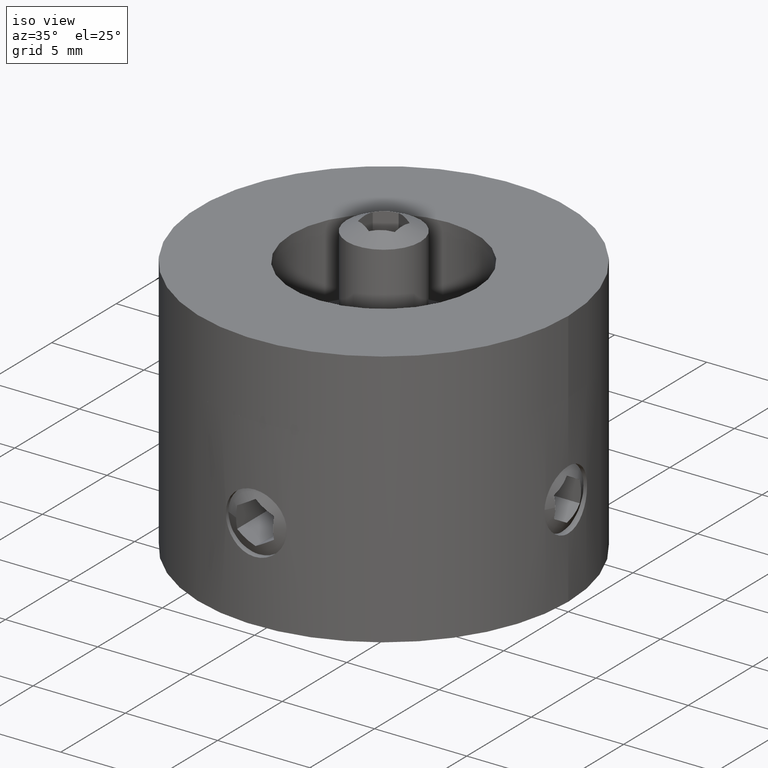
[diagram: clean part render]
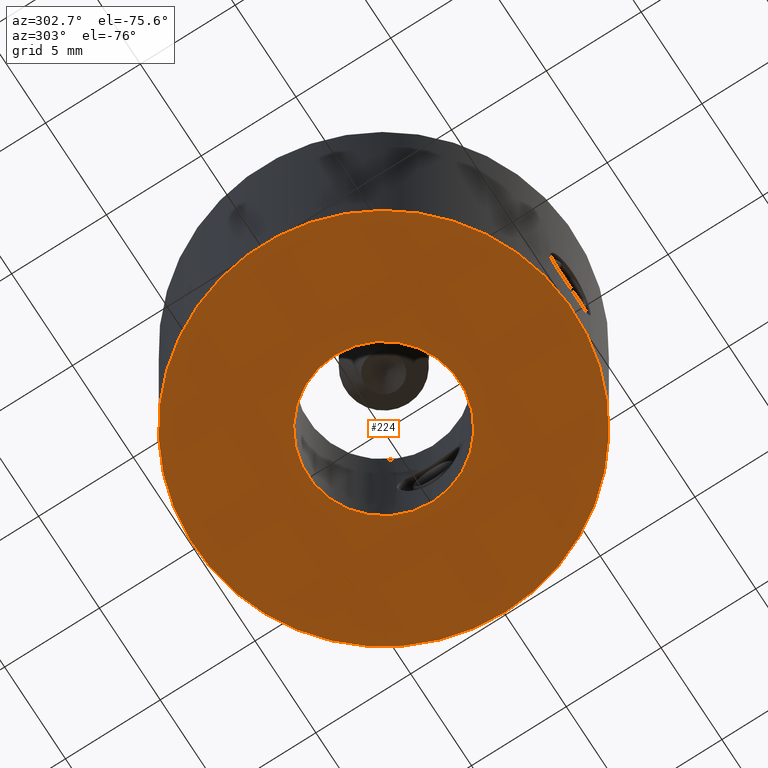
[diagram: tour spotlight — one face highlighted and labeled with its STEP entity id]
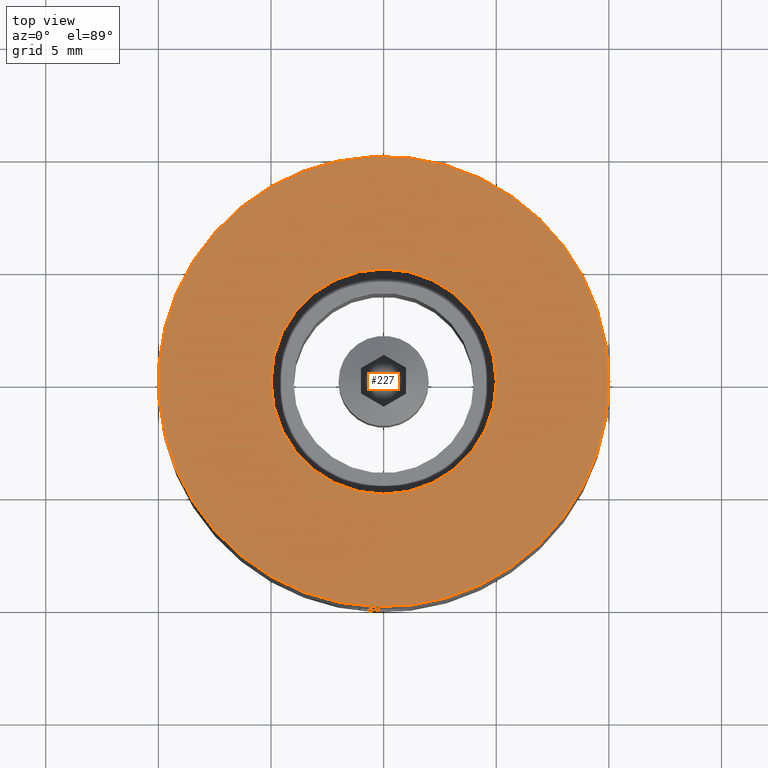
[diagram: tour spotlight — one face highlighted and labeled with its STEP entity id]
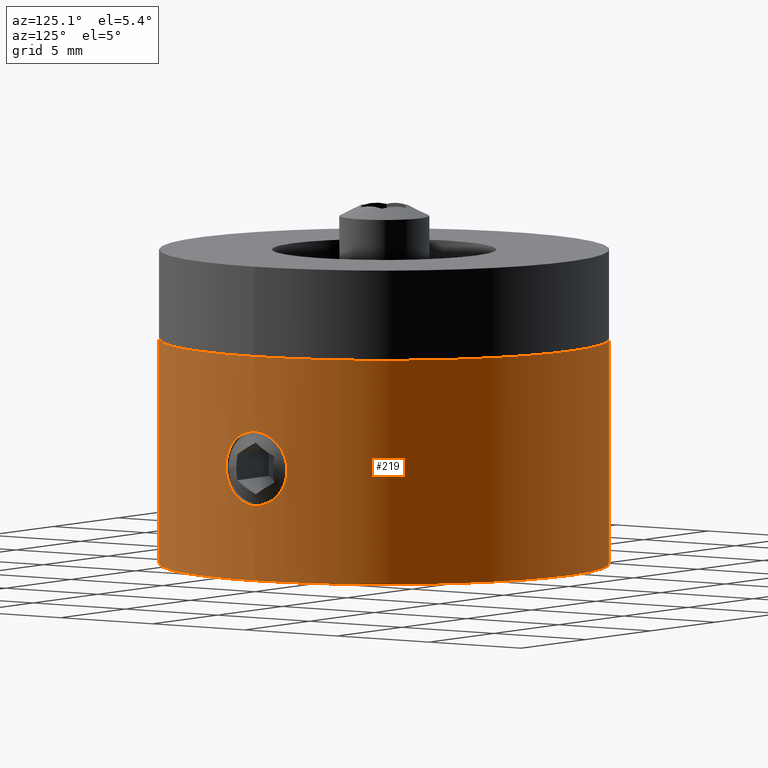
[diagram: tour spotlight — one face highlighted and labeled with its STEP entity id]
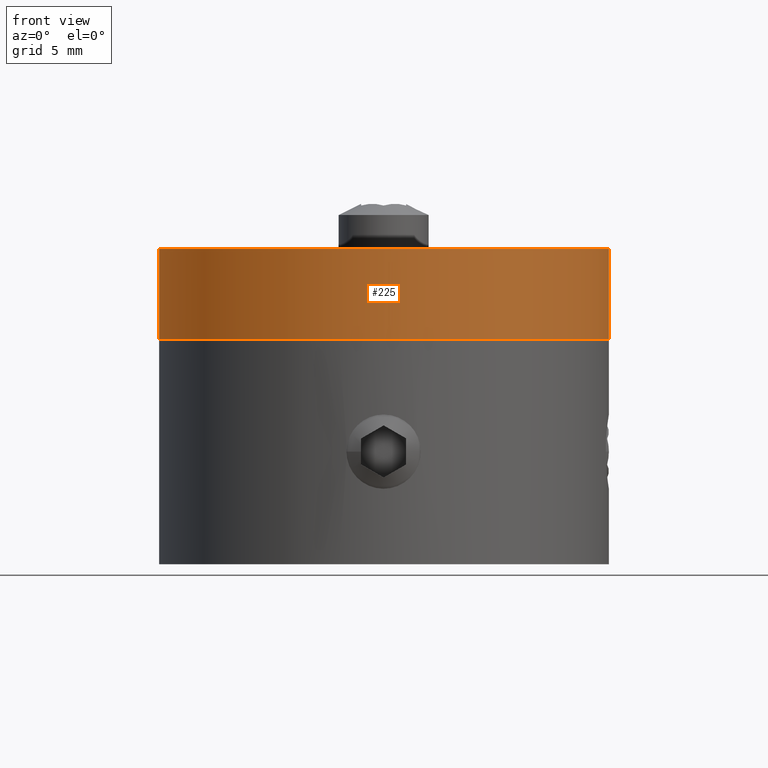
[diagram: tour spotlight — one face highlighted and labeled with its STEP entity id]
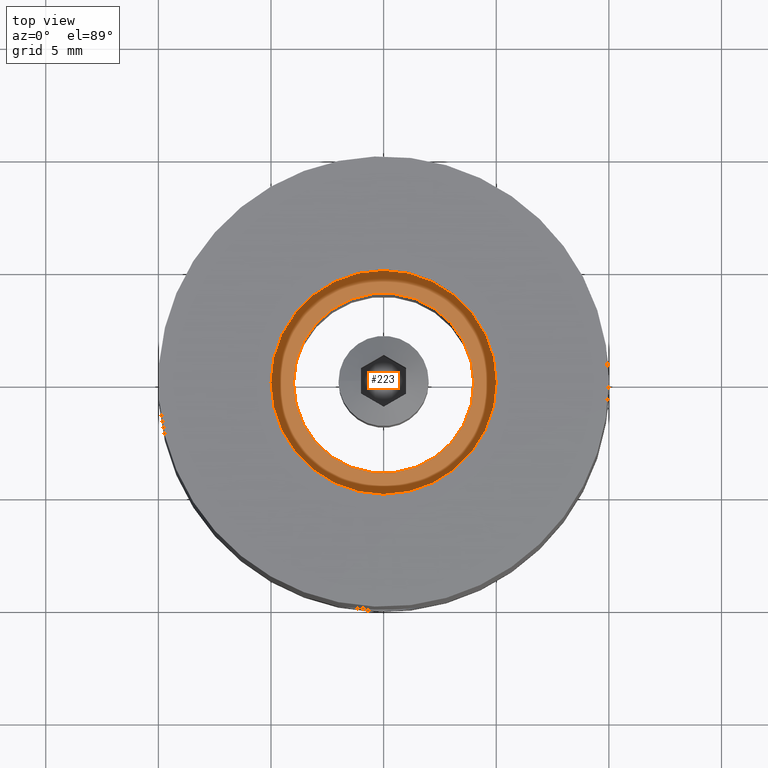
[diagram: tour spotlight — one face highlighted and labeled with its STEP entity id]
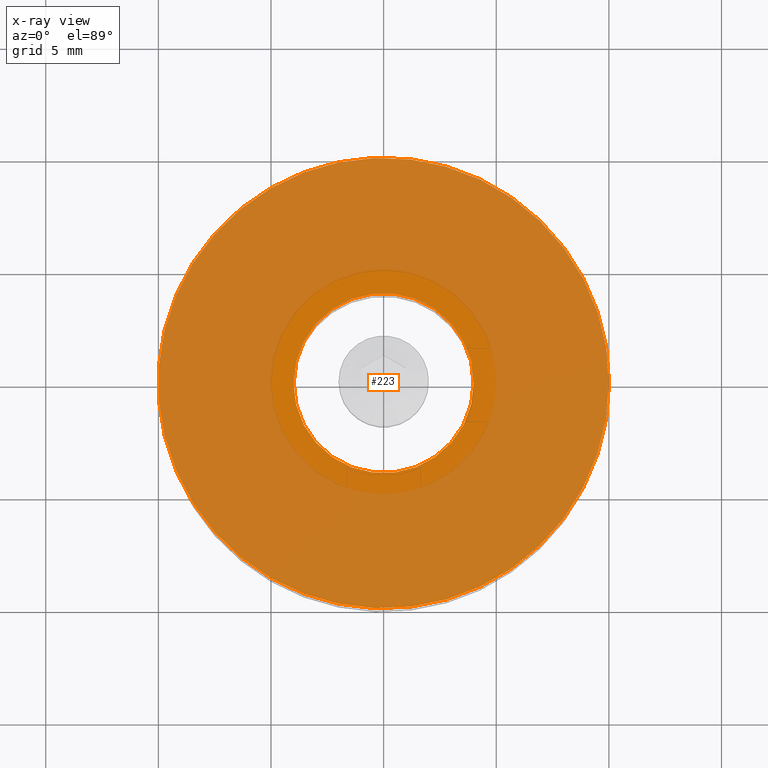
[diagram: x-ray of the same camera — body ghosted, this tour face saturated]
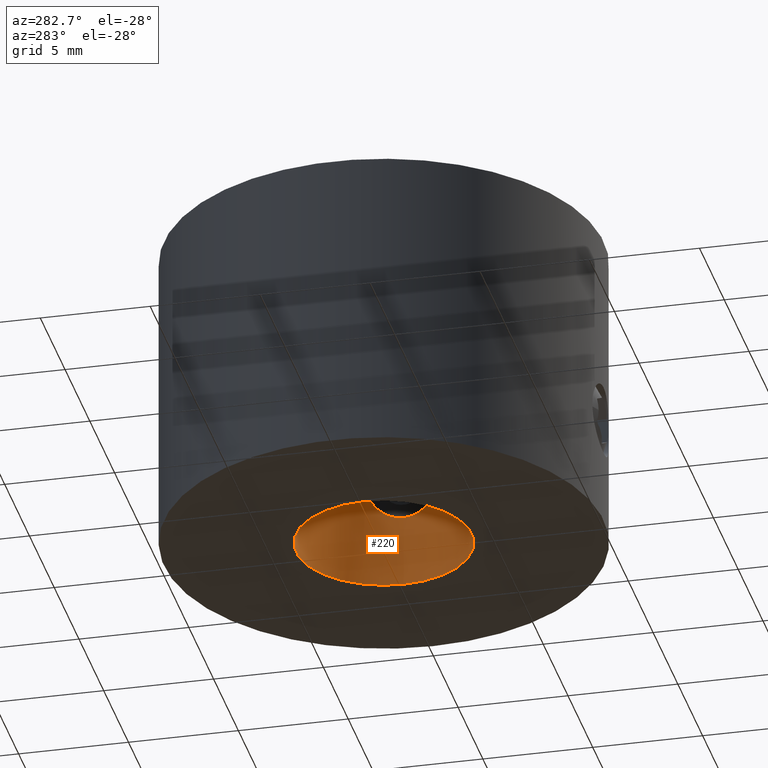
[diagram: tour spotlight — one face highlighted and labeled with its STEP entity id]
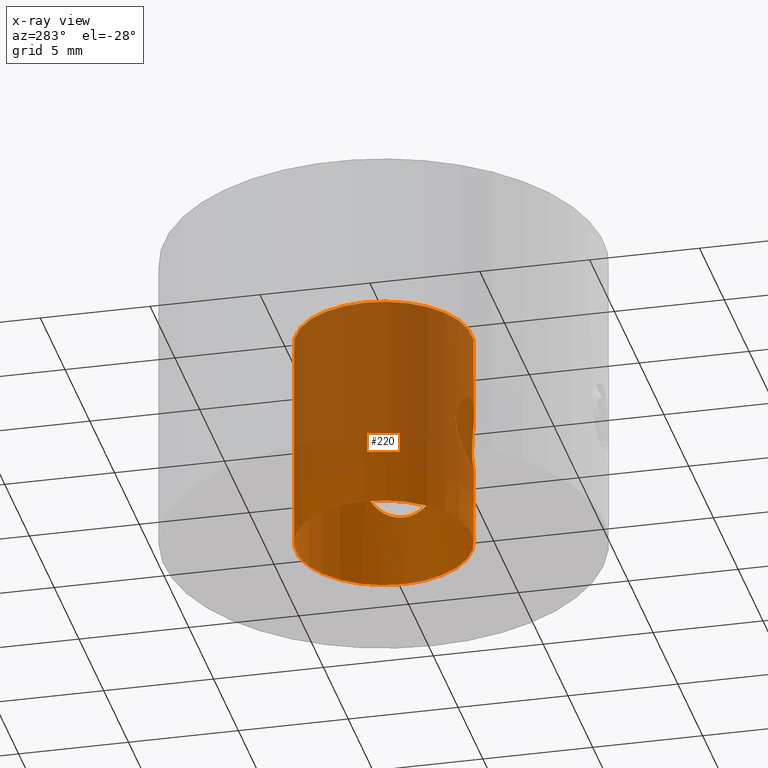
[diagram: x-ray of the same camera — body ghosted, this tour face saturated]
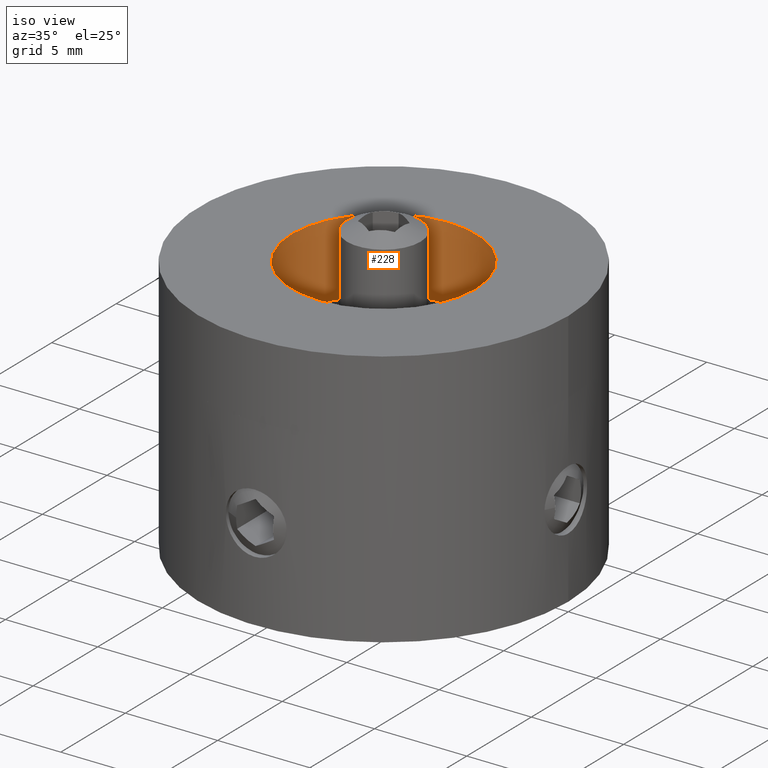
[diagram: tour spotlight — one face highlighted and labeled with its STEP entity id]
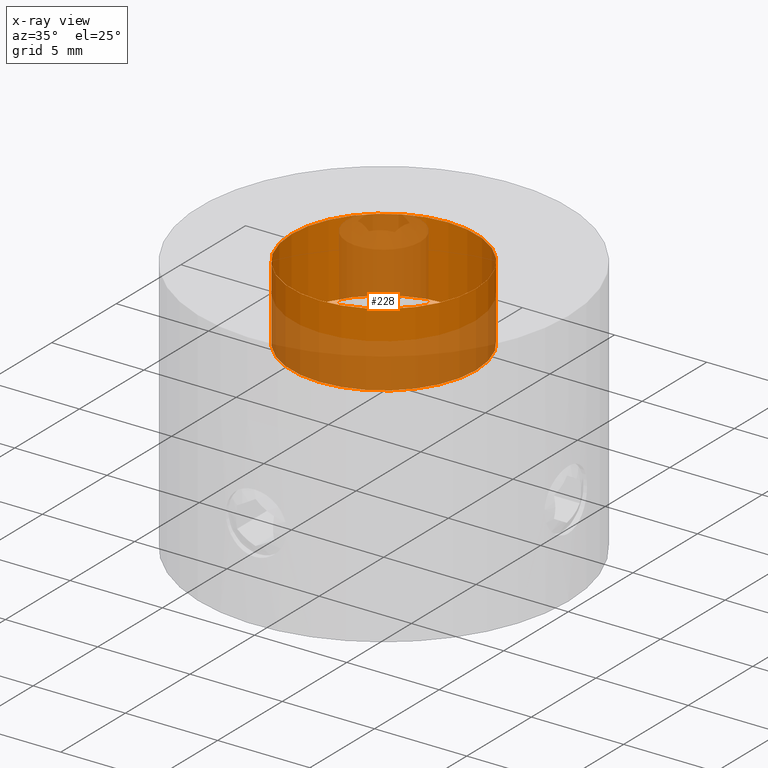
[diagram: x-ray of the same camera — body ghosted, this tour face saturated]
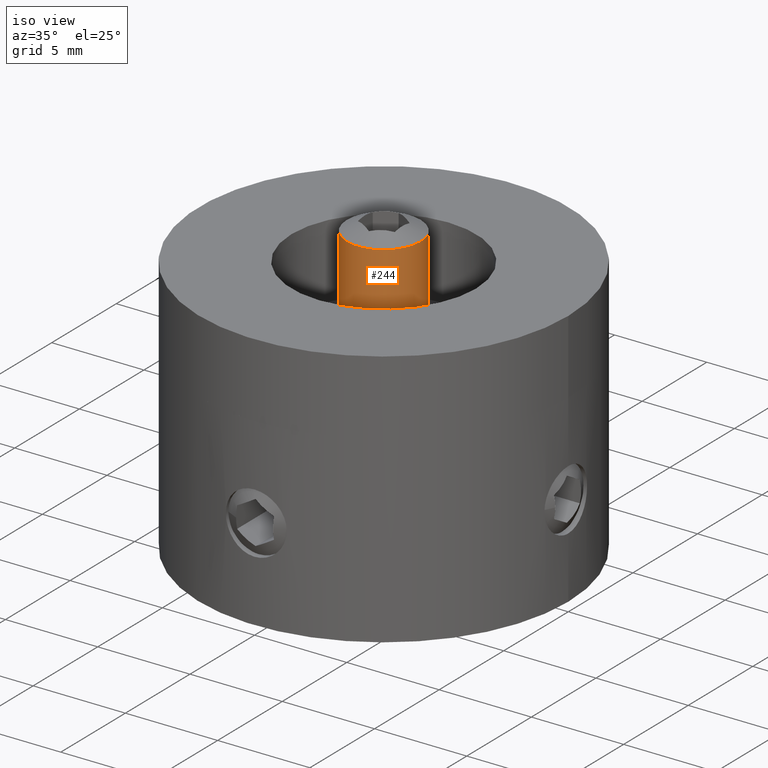
[diagram: tour spotlight — one face highlighted and labeled with its STEP entity id]
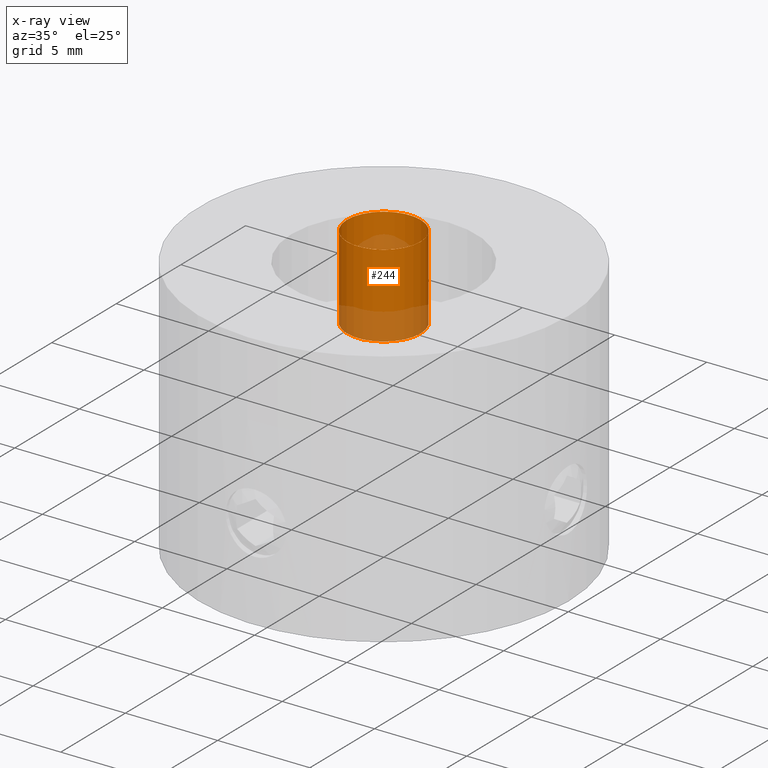
[diagram: x-ray of the same camera — body ghosted, this tour face saturated]
A machine part: a face-by-face anatomy tour. The part has 43 B-rep faces; the first image is the clean iso view, then the 8 largest visible faces are spotlighted one at a time (largest first), each with its STEP entity span.

Face 1 — auxiliary view, entity #224. In plain terms, the highlighted planar face has unit normal (0, 0, 1).
Definition (entity closure, byte-faithful):
#224 = ADVANCED_FACE( '', ( #266, #267 ), #268, .F. );
#266 = FACE_OUTER_BOUND( '', #326, .T. );
#267 = FACE_BOUND( '', #327, .T. );
#268 = PLANE( '', #328 );
#326 = EDGE_LOOP( '', ( #396 ) );
#327 = EDGE_LOOP( '', ( #397 ) );
#328 = AXIS2_PLACEMENT_3D( '', #398, #399, #400 );
#396 = ORIENTED_EDGE( '', *, *, #499, .F. );
#397 = ORIENTED_EDGE( '', *, *, #503, .T. );
#398 = CARTESIAN_POINT( '', ( 0.000000000000000, 0.000000000000000, -10.0000000000000 ) );
#399 = DIRECTION( '', ( 0.000000000000000, 0.000000000000000, 1.00000000000000 ) );
#400 = DIRECTION( '', ( 1.00000000000000, 0.000000000000000, 0.000000000000000 ) );
#499 = EDGE_CURVE( '', #535, #535, #536, .T. );
#503 = EDGE_CURVE( '', #543, #543, #544, .T. );
#535 = VERTEX_POINT( '', #693 );
#536 = CIRCLE( '', #694, 10.0000000000000 );
#543 = VERTEX_POINT( '', #807 );
#544 = CIRCLE( '', #808, 4.00000000000000 );
#693 = CARTESIAN_POINT( '', ( 10.0000000000000, 0.000000000000000, -10.0000000000000 ) );
#694 = AXIS2_PLACEMENT_3D( '', #897, #898, #899 );
#807 = CARTESIAN_POINT( '', ( 4.00000000000000, 0.000000000000000, -10.0000000000000 ) );
#808 = AXIS2_PLACEMENT_3D( '', #903, #904, #905 );
#897 = CARTESIAN_POINT( '', ( 0.000000000000000, 0.000000000000000, -10.0000000000000 ) );
#898 = DIRECTION( '', ( 0.000000000000000, 0.000000000000000, 1.00000000000000 ) );
#899 = DIRECTION( '', ( 1.00000000000000, 0.000000000000000, 0.000000000000000 ) );
#903 = CARTESIAN_POINT( '', ( 0.000000000000000, 0.000000000000000, -10.0000000000000 ) );
#904 = DIRECTION( '', ( 0.000000000000000, 0.000000000000000, 1.00000000000000 ) );
#905 = DIRECTION( '', ( 1.00000000000000, 0.000000000000000, 0.000000000000000 ) );

Face 2 — top view, entity #227. In plain terms, the highlighted planar face has unit normal (0, 0, 1).
Definition (entity closure, byte-faithful):
#227 = ADVANCED_FACE( '', ( #275, #276 ), #277, .T. );
#275 = FACE_OUTER_BOUND( '', #335, .T. );
#276 = FACE_BOUND( '', #336, .T. );
#277 = PLANE( '', #337 );
#335 = EDGE_LOOP( '', ( #411 ) );
#336 = EDGE_LOOP( '', ( #412 ) );
#337 = AXIS2_PLACEMENT_3D( '', #413, #414, #415 );
#411 = ORIENTED_EDGE( '', *, *, #505, .T. );
#412 = ORIENTED_EDGE( '', *, *, #508, .F. );
#413 = CARTESIAN_POINT( '', ( 0.000000000000000, 0.000000000000000, 4.00000000000000 ) );
#414 = DIRECTION( '', ( 0.000000000000000, 0.000000000000000, 1.00000000000000 ) );
#415 = DIRECTION( '', ( 1.00000000000000, 0.000000000000000, 0.000000000000000 ) );
#505 = EDGE_CURVE( '', #547, #547, #548, .T. );
#508 = EDGE_CURVE( '', #553, #553, #554, .T. );
#547 = VERTEX_POINT( '', #811 );
#548 = CIRCLE( '', #812, 10.0000000000000 );
#553 = VERTEX_POINT( '', #817 );
#554 = CIRCLE( '', #818, 5.00000000000000 );
#811 = CARTESIAN_POINT( '', ( 10.0000000000000, 0.000000000000000, 4.00000000000000 ) );
#812 = AXIS2_PLACEMENT_3D( '', #909, #910, #911 );
#817 = CARTESIAN_POINT( '', ( 5.00000000000000, 0.000000000000000, 4.00000000000000 ) );
#818 = AXIS2_PLACEMENT_3D( '', #918, #919, #920 );
#909 = CARTESIAN_POINT( '', ( 0.000000000000000, 0.000000000000000, 4.00000000000000 ) );
#910 = DIRECTION( '', ( 0.000000000000000, 0.000000000000000, 1.00000000000000 ) );
#911 = DIRECTION( '', ( 1.00000000000000, 0.000000000000000, 0.000000000000000 ) );
#918 = CARTESIAN_POINT( '', ( 0.000000000000000, 0.000000000000000, 4.00000000000000 ) );
#919 = DIRECTION( '', ( 0.000000000000000, 0.000000000000000, 1.00000000000000 ) );
#920 = DIRECTION( '', ( 1.00000000000000, 0.000000000000000, 0.000000000000000 ) );

Face 3 — auxiliary view, entity #219. In plain terms, the highlighted cylindrical surface (bore or boss wall) has radius 10 mm, axis along (-0, 0, -1).
Definition (entity closure, byte-faithful):
#219 = ADVANCED_FACE( '', ( #247, #248, #249, #250 ), #251, .T. );
#247 = FACE_BOUND( '', #307, .T. );
#248 = FACE_BOUND( '', #308, .T. );
#249 = FACE_OUTER_BOUND( '', #309, .T. );
#250 = FACE_OUTER_BOUND( '', #310, .T. );
#251 = CYLINDRICAL_SURFACE( '', #311, 10.0000000000000 );
#307 = EDGE_LOOP( '', ( #367 ) );
#308 = EDGE_LOOP( '', ( #368 ) );
#309 = EDGE_LOOP( '', ( #369 ) );
#310 = EDGE_LOOP( '', ( #370 ) );
#311 = AXIS2_PLACEMENT_3D( '', #371, #372, #373 );
#367 = ORIENTED_EDGE( '', *, *, #497, .F. );
#368 = ORIENTED_EDGE( '', *, *, #498, .F. );
#369 = ORIENTED_EDGE( '', *, *, #499, .T. );
#370 = ORIENTED_EDGE( '', *, *, #500, .F. );
#371 = CARTESIAN_POINT( '', ( 0.000000000000000, 0.000000000000000, -10.0000000000000 ) );
#372 = DIRECTION( '', ( -0.000000000000000, 0.000000000000000, -1.00000000000000 ) );
#373 = DIRECTION( '', ( 1.00000000000000, 0.000000000000000, 0.000000000000000 ) );
#497 = EDGE_CURVE( '', #531, #531, #532, .T. );
#498 = EDGE_CURVE( '', #533, #533, #534, .T. );
#499 = EDGE_CURVE( '', #535, #535, #536, .T. );
#500 = EDGE_CURVE( '', #537, #537, #538, .T. );
#531 = VERTEX_POINT( '', #591 );
#532 = B_SPLINE_CURVE_WITH_KNOTS( '', 3, ( #592, #593, #594, #595, #596, #597, #598, #599, #600, #601, #602, #603, #604, #605, #606, #607, #608, #609, #610, #611, #612, #613, #614, #615, #616, #617, #618, #619, #620, #621, #622, #623, #624, #625, #626, #627, #628, #629, #630, #631, #632, #633, #634, #635, #636, #637, #638, #639, #640, #641 ), .UNSPECIFIED., .T., .F., ( 2, 2, 2, 2, 2, 2, 2, 2, 2, 2, 2, 2, 2, 2, 2, 2, 2, 2, 2, 2, 2, 2, 2, 2, 2, 2, 2 ), ( -0.000645854978295161, 0.000000000000000, 0.000322927489147579, 0.000645854978295158, 0.000968782467442737, 0.00129170995659032, 0.00193756493488547, 0.00258341991318063, 0.00290634740232821, 0.00322927489147579, 0.00387512986977095, 0.00419805735891853, 0.00452098484806611, 0.00484391233721369, 0.00516683982636127, 0.00581269480465643, 0.00645854978295159, 0.00678147727209917, 0.00710440476124675, 0.00775025973954191, 0.00807318722868950, 0.00839611471783708, 0.00871904220698466, 0.00904196969613224, 0.00968782467442740, 0.0103336796527226, 0.0106566071418701 ), .UNSPECIFIED. );
#533 = VERTEX_POINT( '', #642 );
#534 = B_SPLINE_CURVE_WITH_KNOTS( '', 3, ( #643, #644, #645, #646, #647, #648, #649, #650, #651, #652, #653, #654, #655, #656, #657, #658, #659, #660, #661, #662, #663, #664, #665, #666, #667, #668, #669, #670, #671, #672, #673, #674, #675, #676, #677, #678, #679, #680, #681, #682, #683, #684, #685, #686, #687, #688, #689, #690, #691, #692 ), .UNSPECIFIED., .T., .F., ( 2, 2, 2, 2, 2, 2, 2, 2, 2, 2, 2, 2, 2, 2, 2, 2, 2, 2, 2, 2, 2, 2, 2, 2, 2, 2, 2 ), ( -0.000645856105121249, 0.000000000000000, 0.000322928052560626, 0.000645856105121253, 0.000968784157681879, 0.00129171221024251, 0.00193756831536376, 0.00258342442048501, 0.00290635247304564, 0.00322928052560626, 0.00387513663072752, 0.00419806468328814, 0.00452099273584877, 0.00484392078840939, 0.00516684884097002, 0.00581270494609127, 0.00645856105121252, 0.00678148910377314, 0.00710441715633377, 0.00775027326145502, 0.00807320131401564, 0.00839612936657627, 0.00871905741913689, 0.00904198547169752, 0.00968784157681877, 0.0103336976819400, 0.0106566257345006 ), .UNSPECIFIED. );
#535 = VERTEX_POINT( '', #693 );
#536 = CIRCLE( '', #694, 10.0000000000000 );
#537 = VERTEX_POINT( '', #695 );
#538 = CIRCLE( '', #696, 10.0000000000000 );
#591 = CARTESIAN_POINT( '', ( 1.65000000000000, -9.86293566845085, -5.00000000000000 ) );
#592 = CARTESIAN_POINT( '', ( 1.65000000000000, -9.86293566845086, -5.21841436253626 ) );
#593 = CARTESIAN_POINT( '', ( 1.65000000000000, -9.86293566845085, -4.89079281873187 ) );
#594 = CARTESIAN_POINT( '', ( 1.63926527518261, -9.86474848926253, -4.78344857279940 ) );
#595 = CARTESIAN_POINT( '', ( 1.59724025971636, -9.87164003352877, -4.57232171462261 ) );
#596 = CARTESIAN_POINT( '', ( 1.56542644403774, -9.87680100993784, -4.46743126881361 ) );
#597 = CARTESIAN_POINT( '', ( 1.48254560968772, -9.88958121746302, -4.26771049418566 ) );
#598 = CARTESIAN_POINT( '', ( 1.43185514551970, -9.89714318999638, -4.17301510751915 ) );
#599 = CARTESIAN_POINT( '', ( 1.31212664871866, -9.91372665241308, -3.99380080110092 ) );
#600 = CARTESIAN_POINT( '', ( 1.24256410864884, -9.92279625291681, -3.90909457310512 ) );
#601 = CARTESIAN_POINT( '', ( 1.01465468495119, -9.94956682646610, -3.68123666701318 ) );
#602 = CARTESIAN_POINT( '', ( 0.830868141320272, -9.96740695646322, -3.55836016826912 ) );
#603 = CARTESIAN_POINT( '', ( 0.433954281828612, -9.99255858052856, -3.39365291609295 ) );
#604 = CARTESIAN_POINT( '', ( 0.216567991732481, -9.99997956631570, -3.35012384053074 ) );
#605 = CARTESIAN_POINT( '', ( -0.106865615143670, -10.0000101497820, -3.34993848615969 ) );
#606 = CARTESIAN_POINT( '', ( -0.216401118690764, -9.99821946212112, -3.36069362476904 ) );
#607 = CARTESIAN_POINT( '', ( -0.428157596186486, -9.99139144112249, -3.40286634595870 ) );
#608 = CARTESIAN_POINT( '', ( -0.531101496160634, -9.98638928503769, -3.43406750772177 ) );
#609 = CARTESIAN_POINT( '', ( -0.831097962933860, -9.96741868199413, -3.55825464994879 ) );
#610 = CARTESIAN_POINT( '', ( -1.01269070642668, -9.94979426213060, -3.67932778032317 ) );
#611 = CARTESIAN_POINT( '', ( -1.24323499037274, -9.92271907493684, -3.90973803451181 ) );
#612 = CARTESIAN_POINT( '', ( -1.31136931969844, -9.91382611245863, -3.99285361528308 ) );
#613 = CARTESIAN_POINT( '', ( -1.43085645899144, -9.89728687441540, -4.17133654198029 ) );
#614 = CARTESIAN_POINT( '', ( -1.48262386122383, -9.88956932367838, -4.26788112343566 ) );
#615 = CARTESIAN_POINT( '', ( -1.56542871407993, -9.87680048714384, -4.46745469260713 ) );
#616 = CARTESIAN_POINT( '', ( -1.59672125424980, -9.87172439561312, -4.57029523134667 ) );
#617 = CARTESIAN_POINT( '', ( -1.63911140905672, -9.86477445740228, -4.78210383051425 ) );
#618 = CARTESIAN_POINT( '', ( -1.64995771511580, -9.86294274241501, -4.89158210679260 ) );
#619 = CARTESIAN_POINT( '', ( -1.65008419103563, -9.86292158388186, -5.21489943565539 ) );
#620 = CARTESIAN_POINT( '', ( -1.60679009147542, -9.87041775163860, -5.43237288754553 ) );
#621 = CARTESIAN_POINT( '', ( -1.44235014030311, -9.89578430760763, -5.82966667084779 ) );
#622 = CARTESIAN_POINT( '', ( -1.31977007573128, -9.91370849315420, -6.01339687918962 ) );
#623 = CARTESIAN_POINT( '', ( -1.09183972159682, -9.94050996213734, -6.24175383801707 ) );
#624 = CARTESIAN_POINT( '', ( -1.00710541882674, -9.94956291264517, -6.31141725398975 ) );
#625 = CARTESIAN_POINT( '', ( -0.828269508366402, -9.96604400445959, -6.43109963322008 ) );
#626 = CARTESIAN_POINT( '', ( -0.733638442198914, -9.97355547456977, -6.48188983949698 ) );
#627 = CARTESIAN_POINT( '', ( -0.433730296054292, -9.99259799566935, -6.60663296100582 ) );
#628 = CARTESIAN_POINT( '', ( -0.219389909931232, -9.99997088591468, -6.64982355094231 ) );
#629 = CARTESIAN_POINT( '', ( 0.107698326599086, -10.0000144241585, -6.65008741917016 ) );
#630 = CARTESIAN_POINT( '', ( 0.214996132315119, -9.99824715833384, -6.63947327610562 ) );
#631 = CARTESIAN_POINT( '', ( 0.426259886497624, -9.99146996618637, -6.59762275557717 ) );
#632 = CARTESIAN_POINT( '', ( 0.531336397573328, -9.98637473722040, -6.56583759241401 ) );
#633 = CARTESIAN_POINT( '', ( 0.730925294120992, -9.97375290319517, -6.48321068888316 ) );
#634 = CARTESIAN_POINT( '', ( 0.825683452404056, -9.96626170248851, -6.43261559772734 ) );
#635 = CARTESIAN_POINT( '', ( 1.00520939553687, -9.94975776374417, -6.31289553489603 ) );
#636 = CARTESIAN_POINT( '', ( 1.08986668551668, -9.94072649474735, -6.24347071636155 ) );
#637 = CARTESIAN_POINT( '', ( 1.31780917543090, -9.91396941287565, -6.01587117083882 ) );
#638 = CARTESIAN_POINT( '', ( 1.44089778054539, -9.89599857143908, -5.83215950397926 ) );
#639 = CARTESIAN_POINT( '', ( 1.60597086048698, -9.87055377044122, -5.43535439507412 ) );
#640 = CARTESIAN_POINT( '', ( 1.65000000000000, -9.86293566845086, -5.21841436253626 ) );
#641 = CARTESIAN_POINT( '', ( 1.65000000000000, -9.86293566845085, -4.89079281873187 ) );
#642 = CARTESIAN_POINT( '', ( 10.0000000000000, 0.000000000000000, -6.65000000000000 ) );
#643 = CARTESIAN_POINT( '', ( 10.0000000000000, -0.218413521290688, -6.64999999999999 ) );
#644 = CARTESIAN_POINT( '', ( 10.0000000000000, 0.109206760645344, -6.65000000000000 ) );
#645 = CARTESIAN_POINT( '', ( 9.99821288436941, 0.216551685979074, -6.63926533805411 ) );
#646 = CARTESIAN_POINT( '', ( 9.99140851602723, 0.427681399793638, -6.59723952540519 ) );
#647 = CARTESIAN_POINT( '', ( 9.98630951004895, 0.532574089260139, -6.56542488020024 ) );
#648 = CARTESIAN_POINT( '', ( 9.97365266895582, 0.732301324644221, -6.48254004533622 ) );
#649 = CARTESIAN_POINT( '', ( 9.96615119886897, 0.826999375447123, -6.43184694824173 ) );
#650 = CARTESIAN_POINT( '', ( 9.94965461747804, 1.00621601985121, -6.31211393239074 ) );
#651 = CARTESIAN_POINT( '', ( 9.94061034622440, 1.09092359330054, -6.24254822515400 ) );
#652 = CARTESIAN_POINT( '', ( 9.91383949388943, 1.31877968475823, -6.01463375465310 ) );
#653 = CARTESIAN_POINT( '', ( 9.89588783493944, 1.44164721442178, -5.83085346742979 ) );
#654 = CARTESIAN_POINT( '', ( 9.87049101626234, 1.60634673418819, -5.43395200743067 ) );
#655 = CARTESIAN_POINT( '', ( 9.86295643638378, 1.64987585889630, -5.21656787386460 ) );
#656 = CARTESIAN_POINT( '', ( 9.86292535280770, 1.65006166214674, -4.89313789468060 ) );
#657 = CARTESIAN_POINT( '', ( 9.86474174528670, 1.63930682768147, -4.78360250684755 ) );
#658 = CARTESIAN_POINT( '', ( 9.87165726058073, 1.59713478019512, -4.57184670476939 ) );
#659 = CARTESIAN_POINT( '', ( 9.87672029203460, 1.56593438951224, -4.46890468628295 ) );
#660 = CARTESIAN_POINT( '', ( 9.89587628197728, 1.44175225651970, -4.16891552243017 ) );
#661 = CARTESIAN_POINT( '', ( 9.91361246064182, 1.32068451129117, -3.98732591794707 ) );
#662 = CARTESIAN_POINT( '', ( 9.94068752476172, 1.09028043850465, -3.75678133093143 ) );
#663 = CARTESIAN_POINT( '', ( 9.94955528150442, 1.00716517697734, -3.68864488535390 ) );
#664 = CARTESIAN_POINT( '', ( 9.96600837323272, 0.828679128543478, -3.56915240771746 ) );
#665 = CARTESIAN_POINT( '', ( 9.97366444897686, 0.732130757234087, -3.51738174675111 ) );
#666 = CARTESIAN_POINT( '', ( 9.98630999433743, 0.532551108786170, -3.43457301445083 ) );
#667 = CARTESIAN_POINT( '', ( 9.99132521443729, 0.429707406061080, -3.40327929159675 ) );
#668 = CARTESIAN_POINT( '', ( 9.99818734439272, 0.217894061183994, -3.36088815098900 ) );
#669 = CARTESIAN_POINT( '', ( 9.99999303635698, 0.108416769528338, -3.35004220390017 ) );
#670 = CARTESIAN_POINT( '', ( 10.0000138650337, -0.214900887729910, -3.34991596948666 ) );
#671 = CARTESIAN_POINT( '', ( 9.99263075130505, -0.432377868655759, -3.39321059534102 ) );
#672 = CARTESIAN_POINT( '', ( 9.96750979620646, -0.829679706729459, -3.55765663017818 ) );
#673 = CARTESIAN_POINT( '', ( 9.94969747660869, -1.01341742951951, -3.68024583375228 ) );
#674 = CARTESIAN_POINT( '', ( 9.92289679111434, -1.24177009285719, -3.90817880450552 ) );
#675 = CARTESIAN_POINT( '', ( 9.91381858354394, -1.31143066334289, -3.99291231361544 ) );
#676 = CARTESIAN_POINT( '', ( 9.89725107927494, -1.43110809024612, -4.17174543354384 ) );
#677 = CARTESIAN_POINT( '', ( 9.88967923800355, -1.48189556350826, -4.26637368204858 ) );
#678 = CARTESIAN_POINT( '', ( 9.87045142839863, -1.60663255494177, -4.56627200280964 ) );
#679 = CARTESIAN_POINT( '', ( 9.86296526681333, -1.64982307464057, -4.78060313993786 ) );
#680 = CARTESIAN_POINT( '', ( 9.86292100472241, -1.65008765300551, -5.10769645933901 ) );
#681 = CARTESIAN_POINT( '', ( 9.86471370556569, -1.63947343157709, -5.21499426371321 ) );
#682 = CARTESIAN_POINT( '', ( 9.87157776883247, -1.59762385420204, -5.42625542431899 ) );
#683 = CARTESIAN_POINT( '', ( 9.87673492332039, -1.56583987523963, -5.53132904719116 ) );
#684 = CARTESIAN_POINT( '', ( 9.88948005394502, -1.48321661366457, -5.73091281848721 ) );
#685 = CARTESIAN_POINT( '', ( 9.89703190055326, -1.43262393777564, -5.82566872510751 ) );
#686 = CARTESIAN_POINT( '', ( 9.91362315694411, -1.31290810407965, -6.00519276805518 ) );
#687 = CARTESIAN_POINT( '', ( 9.92267985476453, -1.24348684221221, -6.08984821623278 ) );
#688 = CARTESIAN_POINT( '', ( 9.94943731891409, -1.01589228987068, -6.31779266203147 ) );
#689 = CARTESIAN_POINT( '', ( 9.96729705080280, -0.832174432425663, -6.44089023524712 ) );
#690 = CARTESIAN_POINT( '', ( 9.99249664085992, -0.435356942436999, -6.60597113569496 ) );
#691 = CARTESIAN_POINT( '', ( 10.0000000000000, -0.218413521290688, -6.64999999999999 ) );
#692 = CARTESIAN_POINT( '', ( 10.0000000000000, 0.109206760645344, -6.65000000000000 ) );
#693 = CARTESIAN_POINT( '', ( 10.0000000000000, 0.000000000000000, -10.0000000000000 ) );
#694 = AXIS2_PLACEMENT_3D( '', #897, #898, #899 );
#695 = CARTESIAN_POINT( '', ( 10.0000000000000, 0.000000000000000, 0.000000000000000 ) );
#696 = AXIS2_PLACEMENT_3D( '', #900, #901, #902 );
#897 = CARTESIAN_POINT( '', ( 0.000000000000000, 0.000000000000000, -10.0000000000000 ) );
#898 = DIRECTION( '', ( 0.000000000000000, 0.000000000000000, 1.00000000000000 ) );
#899 = DIRECTION( '', ( 1.00000000000000, 0.000000000000000, 0.000000000000000 ) );
#900 = CARTESIAN_POINT( '', ( 0.000000000000000, 0.000000000000000, 0.000000000000000 ) );
#901 = DIRECTION( '', ( 0.000000000000000, 0.000000000000000, 1.00000000000000 ) );
#902 = DIRECTION( '', ( 1.00000000000000, 0.000000000000000, 0.000000000000000 ) );

Face 4 — front view, entity #225. In plain terms, the highlighted cylindrical surface (bore or boss wall) has radius 10 mm, axis along (0, -0, 1).
Definition (entity closure, byte-faithful):
#225 = ADVANCED_FACE( '', ( #269, #270 ), #271, .T. );
#269 = FACE_OUTER_BOUND( '', #329, .T. );
#270 = FACE_OUTER_BOUND( '', #330, .T. );
#271 = CYLINDRICAL_SURFACE( '', #331, 10.0000000000000 );
#329 = EDGE_LOOP( '', ( #401 ) );
#330 = EDGE_LOOP( '', ( #402 ) );
#331 = AXIS2_PLACEMENT_3D( '', #403, #404, #405 );
#401 = ORIENTED_EDGE( '', *, *, #505, .F. );
#402 = ORIENTED_EDGE( '', *, *, #506, .T. );
#403 = CARTESIAN_POINT( '', ( 0.000000000000000, 0.000000000000000, 4.00000000000000 ) );
#404 = DIRECTION( '', ( 0.000000000000000, -0.000000000000000, 1.00000000000000 ) );
#405 = DIRECTION( '', ( -1.00000000000000, 0.000000000000000, 0.000000000000000 ) );
#505 = EDGE_CURVE( '', #547, #547, #548, .T. );
#506 = EDGE_CURVE( '', #549, #549, #550, .T. );
#547 = VERTEX_POINT( '', #811 );
#548 = CIRCLE( '', #812, 10.0000000000000 );
#549 = VERTEX_POINT( '', #813 );
#550 = CIRCLE( '', #814, 10.0000000000000 );
#811 = CARTESIAN_POINT( '', ( 10.0000000000000, 0.000000000000000, 4.00000000000000 ) );
#812 = AXIS2_PLACEMENT_3D( '', #909, #910, #911 );
#813 = CARTESIAN_POINT( '', ( 10.0000000000000, 0.000000000000000, 0.000000000000000 ) );
#814 = AXIS2_PLACEMENT_3D( '', #912, #913, #914 );
#909 = CARTESIAN_POINT( '', ( 0.000000000000000, 0.000000000000000, 4.00000000000000 ) );
#910 = DIRECTION( '', ( 0.000000000000000, 0.000000000000000, 1.00000000000000 ) );
#911 = DIRECTION( '', ( 1.00000000000000, 0.000000000000000, 0.000000000000000 ) );
#912 = CARTESIAN_POINT( '', ( 0.000000000000000, 0.000000000000000, 0.000000000000000 ) );
#913 = DIRECTION( '', ( 0.000000000000000, 0.000000000000000, 1.00000000000000 ) );
#914 = DIRECTION( '', ( 1.00000000000000, 0.000000000000000, 0.000000000000000 ) );

Face 5 — top view, entity #223. An x-ray twin of the same camera follows (body ghosted, this face saturated) — the face is partly hidden behind the body. In plain terms, the highlighted planar face has unit normal (0, 0, 1).
Definition (entity closure, byte-faithful):
#223 = ADVANCED_FACE( '', ( #263, #264 ), #265, .T. );
#263 = FACE_OUTER_BOUND( '', #323, .T. );
#264 = FACE_BOUND( '', #324, .T. );
#265 = PLANE( '', #325 );
#323 = EDGE_LOOP( '', ( #391 ) );
#324 = EDGE_LOOP( '', ( #392 ) );
#325 = AXIS2_PLACEMENT_3D( '', #393, #394, #395 );
#391 = ORIENTED_EDGE( '', *, *, #500, .T. );
#392 = ORIENTED_EDGE( '', *, *, #504, .F. );
#393 = CARTESIAN_POINT( '', ( 0.000000000000000, 0.000000000000000, 0.000000000000000 ) );
#394 = DIRECTION( '', ( 0.000000000000000, 0.000000000000000, 1.00000000000000 ) );
#395 = DIRECTION( '', ( 1.00000000000000, 0.000000000000000, 0.000000000000000 ) );
#500 = EDGE_CURVE( '', #537, #537, #538, .T. );
#504 = EDGE_CURVE( '', #545, #545, #546, .T. );
#537 = VERTEX_POINT( '', #695 );
#538 = CIRCLE( '', #696, 10.0000000000000 );
#545 = VERTEX_POINT( '', #809 );
#546 = CIRCLE( '', #810, 4.00000000000000 );
#695 = CARTESIAN_POINT( '', ( 10.0000000000000, 0.000000000000000, 0.000000000000000 ) );
#696 = AXIS2_PLACEMENT_3D( '', #900, #901, #902 );
#809 = CARTESIAN_POINT( '', ( 4.00000000000000, 0.000000000000000, 0.000000000000000 ) );
#810 = AXIS2_PLACEMENT_3D( '', #906, #907, #908 );
#900 = CARTESIAN_POINT( '', ( 0.000000000000000, 0.000000000000000, 0.000000000000000 ) );
#901 = DIRECTION( '', ( 0.000000000000000, 0.000000000000000, 1.00000000000000 ) );
#902 = DIRECTION( '', ( 1.00000000000000, 0.000000000000000, 0.000000000000000 ) );
#906 = CARTESIAN_POINT( '', ( 0.000000000000000, 0.000000000000000, 0.000000000000000 ) );
#907 = DIRECTION( '', ( 0.000000000000000, 0.000000000000000, 1.00000000000000 ) );
#908 = DIRECTION( '', ( 1.00000000000000, 0.000000000000000, 0.000000000000000 ) );

Face 6 — auxiliary view, entity #220. An x-ray twin of the same camera follows (body ghosted, this face saturated) — the face is partly hidden behind the body. In plain terms, the highlighted cylindrical surface (bore or boss wall) has radius 4 mm, axis along (-0, 0, -1).
Definition (entity closure, byte-faithful):
#220 = ADVANCED_FACE( '', ( #252, #253, #254, #255 ), #256, .F. );
#252 = FACE_BOUND( '', #312, .T. );
#253 = FACE_BOUND( '', #313, .T. );
#254 = FACE_OUTER_BOUND( '', #314, .T. );
#255 = FACE_OUTER_BOUND( '', #315, .T. );
#256 = CYLINDRICAL_SURFACE( '', #316, 4.00000000000000 );
#312 = EDGE_LOOP( '', ( #374 ) );
#313 = EDGE_LOOP( '', ( #375 ) );
#314 = EDGE_LOOP( '', ( #376 ) );
#315 = EDGE_LOOP( '', ( #377 ) );
#316 = AXIS2_PLACEMENT_3D( '', #378, #379, #380 );
#374 = ORIENTED_EDGE( '', *, *, #501, .T. );
#375 = ORIENTED_EDGE( '', *, *, #502, .T. );
#376 = ORIENTED_EDGE( '', *, *, #503, .F. );
#377 = ORIENTED_EDGE( '', *, *, #504, .T. );
#378 = CARTESIAN_POINT( '', ( 0.000000000000000, 0.000000000000000, -10.0000000000000 ) );
#379 = DIRECTION( '', ( -0.000000000000000, 0.000000000000000, -1.00000000000000 ) );
#380 = DIRECTION( '', ( 1.00000000000000, 0.000000000000000, 0.000000000000000 ) );
#501 = EDGE_CURVE( '', #539, #539, #540, .T. );
#502 = EDGE_CURVE( '', #541, #541, #542, .T. );
#503 = EDGE_CURVE( '', #543, #543, #544, .T. );
#504 = EDGE_CURVE( '', #545, #545, #546, .T. );
#539 = VERTEX_POINT( '', #697 );
#540 = B_SPLINE_CURVE_WITH_KNOTS( '', 3, ( #698, #699, #700, #701, #702, #703, #704, #705, #706, #707, #708, #709, #710, #711, #712, #713, #714, #715, #716, #717, #718, #719, #720, #721, #722, #723, #724, #725, #726, #727, #728, #729, #730, #731, #732, #733, #734, #735, #736, #737, #738, #739, #740, #741, #742, #743, #744, #745, #746, #747, #748, #749, #750, #751 ), .UNSPECIFIED., .T., .F., ( 2, 2, 2, 2, 2, 2, 2, 2, 2, 2, 2, 2, 2, 2, 2, 2, 2, 2, 2, 2, 2, 2, 2, 2, 2, 2, 2, 2, 2 ), ( -0.000651913605263665, 0.000000000000000, 0.000325956802631832, 0.000651913605263665, 0.00130382721052733, 0.00195574081579099, 0.00228169761842283, 0.00260765442105466, 0.00293361122368649, 0.00325956802631832, 0.00358552482895015, 0.00391148163158199, 0.00423743843421382, 0.00456339523684565, 0.00521530884210931, 0.00554126564474115, 0.00586722244737298, 0.00651913605263664, 0.00684509285526848, 0.00717104965790031, 0.00749700646053214, 0.00782296326316397, 0.00847487686842764, 0.00880083367105947, 0.00912679047369130, 0.00945274727632314, 0.00977870407895497, 0.0104306176842186, 0.0107565744868505 ), .UNSPECIFIED. );
#541 = VERTEX_POINT( '', #752 );
#542 = B_SPLINE_CURVE_WITH_KNOTS( '', 3, ( #753, #754, #755, #756, #757, #758, #759, #760, #761, #762, #763, #764, #765, #766, #767, #768, #769, #770, #771, #772, #773, #774, #775, #776, #777, #778, #779, #780, #781, #782, #783, #784, #785, #786, #787, #788, #789, #790, #791, #792, #793, #794, #795, #796, #797, #798, #799, #800, #801, #802, #803, #804, #805, #806 ), .UNSPECIFIED., .T., .F., ( 2, 2, 2, 2, 2, 2, 2, 2, 2, 2, 2, 2, 2, 2, 2, 2, 2, 2, 2, 2, 2, 2, 2, 2, 2, 2, 2, 2, 2 ), ( -0.000651949910615195, 0.000000000000000, 0.000325974955307595, 0.000651949910615189, 0.00130389982123038, 0.00195584973184557, 0.00228182468715316, 0.00260779964246076, 0.00293377459776835, 0.00325974955307595, 0.00358572450838354, 0.00391169946369114, 0.00423767441899874, 0.00456364937430633, 0.00521559928492153, 0.00554157424022912, 0.00586754919553672, 0.00651949910615191, 0.00684547406145951, 0.00717144901676711, 0.00749742397207470, 0.00782339892738230, 0.00847534883799750, 0.00880132379330509, 0.00912729874861269, 0.00945327370392029, 0.00977924865922788, 0.0104311985698431, 0.0107571735251507 ), .UNSPECIFIED. );
#543 = VERTEX_POINT( '', #807 );
#544 = CIRCLE( '', #808, 4.00000000000000 );
#545 = VERTEX_POINT( '', #809 );
#546 = CIRCLE( '', #810, 4.00000000000000 );
#697 = CARTESIAN_POINT( '', ( 1.65000000000000, -3.64383040220041, -5.00000000000000 ) );
#698 = CARTESIAN_POINT( '', ( 1.65000000000000, -3.64383040220041, -5.22065565394765 ) );
#699 = CARTESIAN_POINT( '', ( 1.65000000000000, -3.64383040220041, -4.88967217302617 ) );
#700 = CARTESIAN_POINT( '', ( 1.63904861833031, -3.64884408943529, -4.78146748927046 ) );
#701 = CARTESIAN_POINT( '', ( 1.59640335664562, -3.66770226233645, -4.56903230470622 ) );
#702 = CARTESIAN_POINT( '', ( 1.56413393206446, -3.68178017154260, -4.46369940295167 ) );
#703 = CARTESIAN_POINT( '', ( 1.43944482008129, -3.73310586053222, -4.16511571983869 ) );
#704 = CARTESIAN_POINT( '', ( 1.31736372718986, -3.78011263838404, -3.98399313642890 ) );
#705 = CARTESIAN_POINT( '', ( 1.01672252187769, -3.87181792729113, -3.68318852904229 ) );
#706 = CARTESIAN_POINT( '', ( 0.834859178480150, -3.91705124141565, -3.56068110425944 ) );
#707 = CARTESIAN_POINT( '', ( 0.537648467918897, -3.96497215549953, -3.43636119649500 ) );
#708 = CARTESIAN_POINT( '', ( 0.432413480053276, -3.97800193390489, -3.40394691024679 ) );
#709 = CARTESIAN_POINT( '', ( 0.218827685417464, -3.99544681456000, -3.36095109068173 ) );
#710 = CARTESIAN_POINT( '', ( 0.110913805842670, -3.99994865062582, -3.35012448339723 ) );
#711 = CARTESIAN_POINT( '', ( -0.107178627567341, -4.00005047740183, -3.34987763047568 ) );
#712 = CARTESIAN_POINT( '', ( -0.217773250358640, -3.99549389700751, -3.36083826155150 ) );
#713 = CARTESIAN_POINT( '', ( -0.430581278452609, -3.97819009503595, -3.40347998571537 ) );
#714 = CARTESIAN_POINT( '', ( -0.534361537381680, -3.96545534405825, -3.43512520880838 ) );
#715 = CARTESIAN_POINT( '', ( -0.735526485923390, -3.93311315968130, -3.51899488412595 ) );
#716 = CARTESIAN_POINT( '', ( -0.829993765083261, -3.91400584670613, -3.56994775882289 ) );
#717 = CARTESIAN_POINT( '', ( -1.00766544840699, -3.87207202440936, -3.68906544531792 ) );
#718 = CARTESIAN_POINT( '', ( -1.09152005906391, -3.84899981648577, -3.75804139026430 ) );
#719 = CARTESIAN_POINT( '', ( -1.24233952999178, -3.80299988415280, -3.90891351403506 ) );
#720 = CARTESIAN_POINT( '', ( -1.30990213528582, -3.77997397809585, -3.99096787048448 ) );
#721 = CARTESIAN_POINT( '', ( -1.42944095736569, -3.73640809180603, -4.16892359447134 ) );
#722 = CARTESIAN_POINT( '', ( -1.48101793435844, -3.71599051360042, -4.26475595186070 ) );
#723 = CARTESIAN_POINT( '', ( -1.60507339483265, -3.66493354284070, -4.56155829798845 ) );
#724 = CARTESIAN_POINT( '', ( -1.64973816707438, -3.64394896533470, -4.78080870275882 ) );
#725 = CARTESIAN_POINT( '', ( -1.65012913458275, -3.64377192750419, -5.10662574910979 ) );
#726 = CARTESIAN_POINT( '', ( -1.63932620521796, -3.64871995044268, -5.21681077792975 ) );
#727 = CARTESIAN_POINT( '', ( -1.59652058943877, -3.66765179527321, -5.43071954685028 ) );
#728 = CARTESIAN_POINT( '', ( -1.56493558139359, -3.68143918671841, -5.53401068696457 ) );
#729 = CARTESIAN_POINT( '', ( -1.44032988934516, -3.73276321878705, -5.83349442750100 ) );
#730 = CARTESIAN_POINT( '', ( -1.31931808326633, -3.77949660999713, -6.01393196105908 ) );
#731 = CARTESIAN_POINT( '', ( -1.09159232722495, -3.84899011412045, -6.24196044533081 ) );
#732 = CARTESIAN_POINT( '', ( -1.00937380191260, -3.87162137676324, -6.30960393783345 ) );
#733 = CARTESIAN_POINT( '', ( -0.832191420932378, -3.91353356902993, -6.42876008654460 ) );
#734 = CARTESIAN_POINT( '', ( -0.735984666442013, -3.93300241735036, -6.48070401496680 ) );
#735 = CARTESIAN_POINT( '', ( -0.536748623763951, -3.96510811441618, -6.56398808309529 ) );
#736 = CARTESIAN_POINT( '', ( -0.433737980779200, -3.97785099136316, -6.59567749563488 ) );
#737 = CARTESIAN_POINT( '', ( -0.220658798889497, -3.99533938983060, -6.63878766181548 ) );
#738 = CARTESIAN_POINT( '', ( -0.109993602894428, -3.99996769568015, -6.64992168648074 ) );
#739 = CARTESIAN_POINT( '', ( 0.216443869175548, -4.00006408550492, -6.65015535883287 ) );
#740 = CARTESIAN_POINT( '', ( 0.435738415282750, -3.98130164856676, -6.60596373613530 ) );
#741 = CARTESIAN_POINT( '', ( 0.734263341711929, -3.93332112099641, -6.48154622509797 ) );
#742 = CARTESIAN_POINT( '', ( 0.830564638547888, -3.91388944706960, -6.42974105943117 ) );
#743 = CARTESIAN_POINT( '', ( 1.00862008955622, -3.87182821644150, -6.31022235928607 ) );
#744 = CARTESIAN_POINT( '', ( 1.09089931835544, -3.84918280701521, -6.24254154587094 ) );
#745 = CARTESIAN_POINT( '', ( 1.24237577794030, -3.80299513949166, -6.09108810019676 ) );
#746 = CARTESIAN_POINT( '', ( 1.31095845338731, -3.77960041723274, -6.00759216535809 ) );
#747 = CARTESIAN_POINT( '', ( 1.42966738595285, -3.73631403203696, -5.83060532368955 ) );
#748 = CARTESIAN_POINT( '', ( 1.48057103094894, -3.71617692304640, -5.73639622278790 ) );
#749 = CARTESIAN_POINT( '', ( 1.60652880777317, -3.66432956952102, -5.43479315574292 ) );
#750 = CARTESIAN_POINT( '', ( 1.65000000000000, -3.64383040220041, -5.22065565394765 ) );
#751 = CARTESIAN_POINT( '', ( 1.65000000000000, -3.64383040220041, -4.88967217302617 ) );
#752 = CARTESIAN_POINT( '', ( 4.00000000000000, 0.000000000000000, -6.65000000000000 ) );
#753 = CARTESIAN_POINT( '', ( 4.00000000000000, -0.220614398283536, -6.65000000000000 ) );
#754 = CARTESIAN_POINT( '', ( 4.00000000000000, 0.110307199141767, -6.65000000000000 ) );
#755 = CARTESIAN_POINT( '', ( 3.99544868324428, 0.218541125243436, -6.63905173683389 ) );
#756 = CARTESIAN_POINT( '', ( 3.97813050816286, 0.431100990354928, -6.59637174729317 ) );
#757 = CARTESIAN_POINT( '', ( 3.96513702488892, 0.536543389859065, -6.56406151380800 ) );
#758 = CARTESIAN_POINT( '', ( 3.91696937906802, 0.835531342816727, -6.43911649558963 ) );
#759 = CARTESIAN_POINT( '', ( 3.87178335091306, 1.01685477061689, -6.31671376758061 ) );
#760 = CARTESIAN_POINT( '', ( 3.78006529755790, 1.31750001409197, -6.01583585442251 ) );
#761 = CARTESIAN_POINT( '', ( 3.73302215078091, 1.43963377152745, -5.83423334455060 ) );
#762 = CARTESIAN_POINT( '', ( 3.68196188893397, 1.56369964891714, -5.53743936894967 ) );
#763 = CARTESIAN_POINT( '', ( 3.66784935918592, 1.59606794325622, -5.43234141324746 ) );
#764 = CARTESIAN_POINT( '', ( 3.64885084804105, 1.63903608560667, -5.21888966896155 ) );
#765 = CARTESIAN_POINT( '', ( 3.64389252107122, 1.64986281767207, -5.11104261960371 ) );
#766 = CARTESIAN_POINT( '', ( 3.64376944507344, 1.65013461675247, -4.89307232771426 ) );
#767 = CARTESIAN_POINT( '', ( 3.64878185238850, 1.63918679307928, -4.78243283911105 ) );
#768 = CARTESIAN_POINT( '', ( 3.66762085712045, 1.59658999036703, -4.56968707344234 ) );
#769 = CARTESIAN_POINT( '', ( 3.68142554822881, 1.56497690672348, -4.46597442739527 ) );
#770 = CARTESIAN_POINT( '', ( 3.71588014019811, 1.48131076058024, -4.26511602183555 ) );
#771 = CARTESIAN_POINT( '', ( 3.73600214175146, 1.43048683090375, -4.17076886110754 ) );
#772 = CARTESIAN_POINT( '', ( 3.77938298203644, 1.31159019958748, -3.99319912423358 ) );
#773 = CARTESIAN_POINT( '', ( 3.80287322220686, 1.24272377095329, -3.90935476201559 ) );
#774 = CARTESIAN_POINT( '', ( 3.84885892266727, 1.09201287010498, -3.75847783042124 ) );
#775 = CARTESIAN_POINT( '', ( 3.87147880496997, 1.00996445531535, -3.69080443882702 ) );
#776 = CARTESIAN_POINT( '', ( 3.91362029503545, 0.831836837738509, -3.57099031011799 ) );
#777 = CARTESIAN_POINT( '', ( 3.93301099487306, 0.735863348287981, -3.51927786650664 ) );
#778 = CARTESIAN_POINT( '', ( 3.98093810237522, 0.438649333341769, -3.39493975868764 ) );
#779 = CARTESIAN_POINT( '', ( 3.99989082039773, 0.219299347996548, -3.35026467798475 ) );
#780 = CARTESIAN_POINT( '', ( 4.00005383938803, -0.106648848003561, -3.34986948019145 ) );
#781 = CARTESIAN_POINT( '', ( 3.99555670520043, -0.216898038251874, -3.36068416859150 ) );
#782 = CARTESIAN_POINT( '', ( 3.97817750956810, -0.430838538011865, -3.40351031689277 ) );
#783 = CARTESIAN_POINT( '', ( 3.96545792694857, -0.534217498059727, -3.43512619024440 ) );
#784 = CARTESIAN_POINT( '', ( 3.91731745698441, -0.834028514941133, -3.55994099459991 ) );
#785 = CARTESIAN_POINT( '', ( 3.87243153841650, -1.01465352721532, -3.68122344418999 ) );
#786 = CARTESIAN_POINT( '', ( 3.80291628089314, -1.24263418209914, -3.90917066614890 ) );
#787 = CARTESIAN_POINT( '', ( 3.77987065953601, -1.31018449308869, -3.99139300579754 ) );
#788 = CARTESIAN_POINT( '', ( 3.73652821611716, -1.42911248644450, -4.16842981308094 ) );
#789 = CARTESIAN_POINT( '', ( 3.71603247621580, -1.48091934919762, -4.26447365334082 ) );
#790 = CARTESIAN_POINT( '', ( 3.68182347069413, -1.56403178157104, -4.46341290390707 ) );
#791 = CARTESIAN_POINT( '', ( 3.66802157019320, -1.59567301761158, -4.56627308380076 ) );
#792 = CARTESIAN_POINT( '', ( 3.64897861477625, -1.63875247900401, -4.77913413679893 ) );
#793 = CARTESIAN_POINT( '', ( 3.64387139006067, -1.64990948310748, -4.88983346100545 ) );
#794 = CARTESIAN_POINT( '', ( 3.64374919252606, -1.65017934206207, -5.21624063928819 ) );
#795 = CARTESIAN_POINT( '', ( 3.66451859040999, -1.60602589562102, -5.43539252236758 ) );
#796 = CARTESIAN_POINT( '', ( 3.71565969519164, -1.48184916531500, -5.73363445103128 ) );
#797 = CARTESIAN_POINT( '', ( 3.73612476298131, -1.43017433908144, -5.82979814527794 ) );
#798 = CARTESIAN_POINT( '', ( 3.77961101585434, -1.31094143788414, -6.00766867000618 ) );
#799 = CARTESIAN_POINT( '', ( 3.80266660938291, -1.24337838150788, -6.08994857703134 ) );
#800 = CARTESIAN_POINT( '', ( 3.84887193336354, -1.09199266585602, -6.24158355252092 ) );
#801 = CARTESIAN_POINT( '', ( 3.87184268069545, -1.00852018182355, -6.31025374420140 ) );
#802 = CARTESIAN_POINT( '', ( 3.91369559526760, -0.831423772082178, -6.42919989594033 ) );
#803 = CARTESIAN_POINT( '', ( 3.93282312682071, -0.737091574767421, -6.48023857910927 ) );
#804 = CARTESIAN_POINT( '', ( 3.98150256548952, -0.435022145179211, -6.60651694541634 ) );
#805 = CARTESIAN_POINT( '', ( 4.00000000000000, -0.220614398283536, -6.65000000000000 ) );
#806 = CARTESIAN_POINT( '', ( 4.00000000000000, 0.110307199141767, -6.65000000000000 ) );
#807 = CARTESIAN_POINT( '', ( 4.00000000000000, 0.000000000000000, -10.0000000000000 ) );
#808 = AXIS2_PLACEMENT_3D( '', #903, #904, #905 );
#809 = CARTESIAN_POINT( '', ( 4.00000000000000, 0.000000000000000, 0.000000000000000 ) );
#810 = AXIS2_PLACEMENT_3D( '', #906, #907, #908 );
#903 = CARTESIAN_POINT( '', ( 0.000000000000000, 0.000000000000000, -10.0000000000000 ) );
#904 = DIRECTION( '', ( 0.000000000000000, 0.000000000000000, 1.00000000000000 ) );
#905 = DIRECTION( '', ( 1.00000000000000, 0.000000000000000, 0.000000000000000 ) );
#906 = CARTESIAN_POINT( '', ( 0.000000000000000, 0.000000000000000, 0.000000000000000 ) );
#907 = DIRECTION( '', ( 0.000000000000000, 0.000000000000000, 1.00000000000000 ) );
#908 = DIRECTION( '', ( 1.00000000000000, 0.000000000000000, 0.000000000000000 ) );

Face 7 — iso view, entity #228. An x-ray twin of the same camera follows (body ghosted, this face saturated) — the face is partly hidden behind the body. In plain terms, the highlighted cylindrical surface (bore or boss wall) has radius 5 mm, axis along (0, -0, 1).
Definition (entity closure, byte-faithful):
#228 = ADVANCED_FACE( '', ( #278, #279 ), #280, .F. );
#278 = FACE_OUTER_BOUND( '', #338, .T. );
#279 = FACE_OUTER_BOUND( '', #339, .T. );
#280 = CYLINDRICAL_SURFACE( '', #340, 5.00000000000000 );
#338 = EDGE_LOOP( '', ( #416 ) );
#339 = EDGE_LOOP( '', ( #417 ) );
#340 = AXIS2_PLACEMENT_3D( '', #418, #419, #420 );
#416 = ORIENTED_EDGE( '', *, *, #508, .T. );
#417 = ORIENTED_EDGE( '', *, *, #507, .F. );
#418 = CARTESIAN_POINT( '', ( 0.000000000000000, 0.000000000000000, 4.00000000000000 ) );
#419 = DIRECTION( '', ( 0.000000000000000, -0.000000000000000, 1.00000000000000 ) );
#420 = DIRECTION( '', ( -1.00000000000000, 0.000000000000000, 0.000000000000000 ) );
#507 = EDGE_CURVE( '', #551, #551, #552, .T. );
#508 = EDGE_CURVE( '', #553, #553, #554, .T. );
#551 = VERTEX_POINT( '', #815 );
#552 = CIRCLE( '', #816, 5.00000000000000 );
#553 = VERTEX_POINT( '', #817 );
#554 = CIRCLE( '', #818, 5.00000000000000 );
#815 = CARTESIAN_POINT( '', ( 5.00000000000000, 0.000000000000000, 0.000000000000000 ) );
#816 = AXIS2_PLACEMENT_3D( '', #915, #916, #917 );
#817 = CARTESIAN_POINT( '', ( 5.00000000000000, 0.000000000000000, 4.00000000000000 ) );
#818 = AXIS2_PLACEMENT_3D( '', #918, #919, #920 );
#915 = CARTESIAN_POINT( '', ( 0.000000000000000, 0.000000000000000, 0.000000000000000 ) );
#916 = DIRECTION( '', ( 0.000000000000000, 0.000000000000000, 1.00000000000000 ) );
#917 = DIRECTION( '', ( 1.00000000000000, 0.000000000000000, 0.000000000000000 ) );
#918 = CARTESIAN_POINT( '', ( 0.000000000000000, 0.000000000000000, 4.00000000000000 ) );
#919 = DIRECTION( '', ( 0.000000000000000, 0.000000000000000, 1.00000000000000 ) );
#920 = DIRECTION( '', ( 1.00000000000000, 0.000000000000000, 0.000000000000000 ) );

Face 8 — iso view, entity #244. An x-ray twin of the same camera follows (body ghosted, this face saturated) — the face is partly hidden behind the body. In plain terms, the highlighted cylindrical surface (bore or boss wall) has radius 2 mm, axis along (0, -0, 1).
Definition (entity closure, byte-faithful):
#244 = ADVANCED_FACE( '', ( #301, #302 ), #303, .T. );
#301 = FACE_OUTER_BOUND( '', #361, .T. );
#302 = FACE_OUTER_BOUND( '', #362, .T. );
#303 = CYLINDRICAL_SURFACE( '', #363, 2.00000000000000 );
#361 = EDGE_LOOP( '', ( #487 ) );
#362 = EDGE_LOOP( '', ( #488 ) );
#363 = AXIS2_PLACEMENT_3D( '', #489, #490, #491 );
#487 = ORIENTED_EDGE( '', *, *, #509, .T. );
#488 = ORIENTED_EDGE( '', *, *, #530, .F. );
#489 = CARTESIAN_POINT( '', ( 0.000000000000000, 0.000000000000000, 0.000000000000000 ) );
#490 = DIRECTION( '', ( 0.000000000000000, -0.000000000000000, 1.00000000000000 ) );
#491 = DIRECTION( '', ( -1.00000000000000, 0.000000000000000, 0.000000000000000 ) );
#509 = EDGE_CURVE( '', #555, #555, #556, .T. );
#530 = EDGE_CURVE( '', #589, #589, #590, .T. );
#555 = VERTEX_POINT( '', #819 );
#556 = CIRCLE( '', #820, 2.00000000000000 );
#589 = VERTEX_POINT( '', #895 );
#590 = CIRCLE( '', #896, 2.00000000000000 );
#819 = CARTESIAN_POINT( '', ( -2.00000000000000, 0.000000000000000, 5.50000000000000 ) );
#820 = AXIS2_PLACEMENT_3D( '', #921, #922, #923 );
#895 = CARTESIAN_POINT( '', ( -2.00000000000000, 0.000000000000000, 1.00000000000000 ) );
#896 = AXIS2_PLACEMENT_3D( '', #939, #940, #941 );
#921 = CARTESIAN_POINT( '', ( 0.000000000000000, 0.000000000000000, 5.50000000000000 ) );
#922 = DIRECTION( '', ( -0.000000000000000, 0.000000000000000, -1.00000000000000 ) );
#923 = DIRECTION( '', ( -1.00000000000000, 0.000000000000000, 0.000000000000000 ) );
#939 = CARTESIAN_POINT( '', ( 0.000000000000000, 0.000000000000000, 1.00000000000000 ) );
#940 = DIRECTION( '', ( -0.000000000000000, 0.000000000000000, -1.00000000000000 ) );
#941 = DIRECTION( '', ( -1.00000000000000, 0.000000000000000, 0.000000000000000 ) );